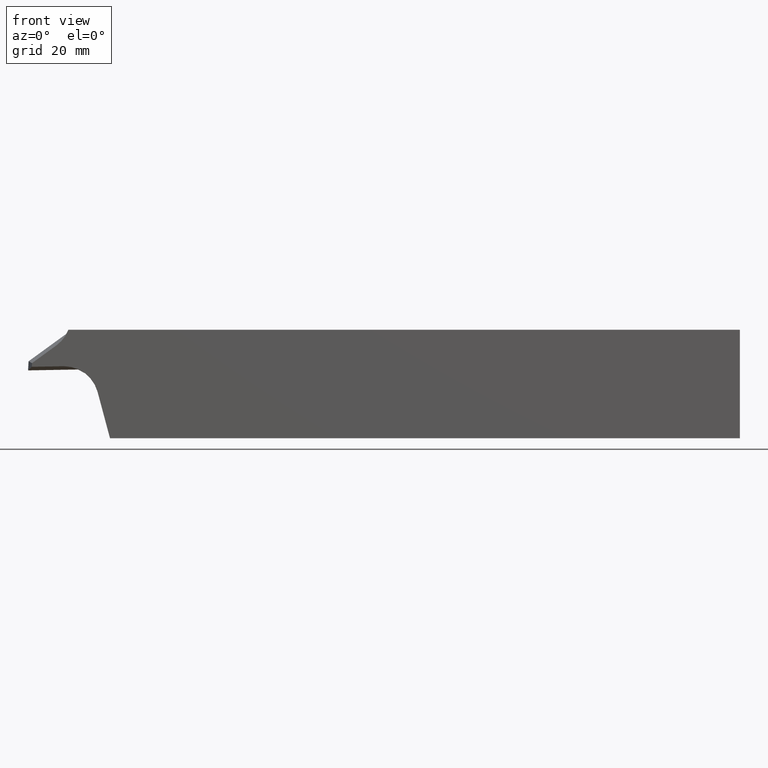
[diagram: clean part render]
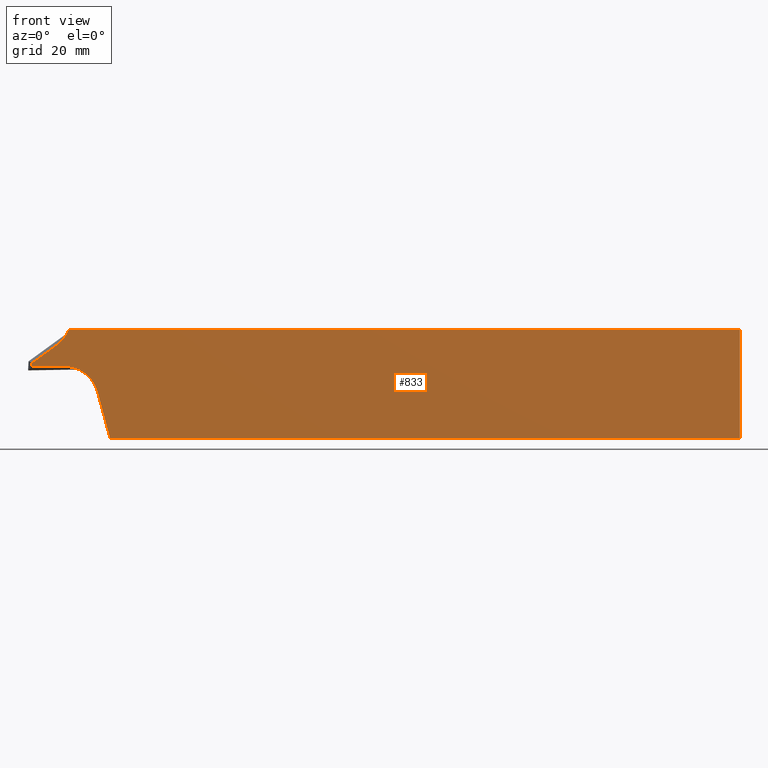
[diagram: same view with one face highlighted and labeled with its STEP entity id]
A machine part, front view. The second image highlights one B-rep face of the part: STEP entity #833.
In plain terms, the highlighted planar face has unit normal (0, 1, -0).
Its self-contained STEP definition (entity closure, byte-faithful):
#2 = DIRECTION ( 'NONE',  ( -2.482138512326289500E-030, -1.000000000000000000, 0.0000000000000000000 ) ) ;
#5 = LINE ( 'NONE', #328, #1473 ) ;
#30 = ORIENTED_EDGE ( 'NONE', *, *, #1051, .T. ) ;
#116 = EDGE_LOOP ( 'NONE', ( #30, #894, #1287, #1298, #1509, #1528, #675, #794, #1055, #356 ) ) ;
#131 = DIRECTION ( 'NONE',  ( -1.000000000000000000, -2.482138512326286400E-030, 1.110223024625109200E-016 ) ) ;
#139 = DIRECTION ( 'NONE',  ( 2.482138512326289500E-030, 1.000000000000000000, -5.511454653387083600E-046 ) ) ;
#161 = CARTESIAN_POINT ( 'NONE',  ( -2.081668171172168500E-014, -19.04999999999997900, -38.09999999999995900 ) ) ;
#209 = CARTESIAN_POINT ( 'NONE',  ( -110.6144449865125900, -19.04999999999997900, -38.09999999999994500 ) ) ;
#215 = CARTESIAN_POINT ( 'NONE',  ( -118.6837122982711600, -19.04999999999999000, -31.55367457411552200 ) ) ;
#228 = AXIS2_PLACEMENT_3D ( 'NONE', #215, #632, #386 ) ;
#248 = PLANE ( 'NONE',  #563 ) ;
#270 = LINE ( 'NONE', #658, #390 ) ;
#275 = CARTESIAN_POINT ( 'NONE',  ( -124.3126031752604600, -19.04999999999997900, -24.91331827457312200 ) ) ;
#287 = EDGE_CURVE ( 'NONE', #877, #989, #352, .T. ) ;
#290 = EDGE_CURVE ( 'NONE', #989, #1249, #659, .T. ) ;
#312 = VERTEX_POINT ( 'NONE', #1133 ) ;
#328 = CARTESIAN_POINT ( 'NONE',  ( -124.6612962398215200, -19.04999999999997900, -31.56677830152227700 ) ) ;
#338 = EDGE_CURVE ( 'NONE', #1156, #312, #834, .T. ) ;
#352 = LINE ( 'NONE', #161, #1630 ) ;
#356 = ORIENTED_EDGE ( 'NONE', *, *, #595, .F. ) ;
#365 = CARTESIAN_POINT ( 'NONE',  ( -2.081668171172168500E-014, -19.04999999999997900, -38.09999999999995900 ) ) ;
#386 = DIRECTION ( 'NONE',  ( 0.0000000000000000000, 0.0000000000000000000, -1.000000000000000000 ) ) ;
#390 = VECTOR ( 'NONE', #494, 1000.000000000000100 ) ;
#465 = LINE ( 'NONE', #1122, #1585 ) ;
#466 = EDGE_CURVE ( 'NONE', #1080, #1249, #467, .T. ) ;
#467 = CIRCLE ( 'NONE', #1593, 6.099999999999987200 ) ;
#486 = CARTESIAN_POINT ( 'NONE',  ( -123.5994385181671800, -19.04999999999999000, -16.85515915897577700 ) ) ;
#494 = DIRECTION ( 'NONE',  ( 0.8090169943749472300, 2.366582715663036100E-030, 0.5877852522924733600 ) ) ;
#521 = FACE_OUTER_BOUND ( 'NONE', #116, .T. ) ;
#563 = AXIS2_PLACEMENT_3D ( 'NONE', #1207, #139, #983 ) ;
#578 = VERTEX_POINT ( 'NONE', #275 ) ;
#595 = EDGE_CURVE ( 'NONE', #1486, #1334, #465, .T. ) ;
#600 = DIRECTION ( 'NONE',  ( -2.482138512326289500E-030, -1.000000000000000000, 0.0000000000000000000 ) ) ;
#630 = DIRECTION ( 'NONE',  ( 0.05233595624297031300, -2.366582715663038200E-030, 0.9986295347545723900 ) ) ;
#632 = DIRECTION ( 'NONE',  ( -2.482138512326289500E-030, -1.000000000000000000, 0.0000000000000000000 ) ) ;
#634 = DIRECTION ( 'NONE',  ( 1.000000000000000000, 2.482138512326286400E-030, -9.957992501029142700E-017 ) ) ;
#657 = EDGE_CURVE ( 'NONE', #578, #1080, #270, .T. ) ;
#658 = CARTESIAN_POINT ( 'NONE',  ( -49.21958788119678700, -19.04999999999996900, 29.64495089272115200 ) ) ;
#659 = LINE ( 'NONE', #1201, #828 ) ;
#675 = ORIENTED_EDGE ( 'NONE', *, *, #338, .F. ) ;
#676 = CARTESIAN_POINT ( 'NONE',  ( -118.6837122982711600, -19.04999999999999000, -25.45367457411553900 ) ) ;
#702 = DIRECTION ( 'NONE',  ( 0.0000000000000000000, 0.0000000000000000000, -1.000000000000000000 ) ) ;
#737 = AXIS2_PLACEMENT_3D ( 'NONE', #1412, #600, #702 ) ;
#743 = CARTESIAN_POINT ( 'NONE',  ( -120.0139484791831400, -19.04999999999997900, -21.79016282466294600 ) ) ;
#794 = ORIENTED_EDGE ( 'NONE', *, *, #1184, .F. ) ;
#828 = VECTOR ( 'NONE', #131, 1000.000000000000000 ) ;
#833 = ADVANCED_FACE ( 'NONE', ( #521 ), #248, .F. ) ;
#834 = LINE ( 'NONE', #1424, #1285 ) ;
#864 = DIRECTION ( 'NONE',  ( 2.220446049250363900E-016, 0.0000000000000000000, 1.000000000000000000 ) ) ;
#877 = VERTEX_POINT ( 'NONE', #1634 ) ;
#894 = ORIENTED_EDGE ( 'NONE', *, *, #287, .T. ) ;
#929 = DIRECTION ( 'NONE',  ( -0.9998476951563911600, -2.477516280459739900E-030, -0.01745240643728329700 ) ) ;
#983 = DIRECTION ( 'NONE',  ( -2.220446049250363400E-016, 0.0000000000000000000, -1.000000000000000000 ) ) ;
#989 = VERTEX_POINT ( 'NONE', #1092 ) ;
#992 = DIRECTION ( 'NONE',  ( -0.2588190451025185700, 7.888609052210126800E-031, 0.9659258262890688700 ) ) ;
#1013 = EDGE_CURVE ( 'NONE', #1334, #1378, #1251, .T. ) ;
#1051 = EDGE_CURVE ( 'NONE', #1486, #877, #1071, .T. ) ;
#1055 = ORIENTED_EDGE ( 'NONE', *, *, #1013, .F. ) ;
#1071 = LINE ( 'NONE', #365, #1328 ) ;
#1080 = VERTEX_POINT ( 'NONE', #743 ) ;
#1092 = CARTESIAN_POINT ( 'NONE',  ( 0.0000000000000000000, -19.04999999999996900, -19.04999999999997900 ) ) ;
#1098 = DIRECTION ( 'NONE',  ( 0.0000000000000000000, 0.0000000000000000000, -1.000000000000000000 ) ) ;
#1122 = CARTESIAN_POINT ( 'NONE',  ( -103.2046821851745200, -19.04999999999997600, -65.75361124662781300 ) ) ;
#1133 = CARTESIAN_POINT ( 'NONE',  ( -124.3460531544840500, -19.04999999999996900, -25.55158190033857200 ) ) ;
#1154 = CIRCLE ( 'NONE', #228, 6.099999999999973900 ) ;
#1156 = VERTEX_POINT ( 'NONE', #1492 ) ;
#1184 = EDGE_CURVE ( 'NONE', #1378, #1156, #1154, .T. ) ;
#1201 = CARTESIAN_POINT ( 'NONE',  ( 0.0000000000000000000, -19.04999999999996900, -19.04999999999997900 ) ) ;
#1207 = CARTESIAN_POINT ( 'NONE',  ( -2.081668171172168500E-014, -19.04999999999997900, -38.09999999999995900 ) ) ;
#1249 = VERTEX_POINT ( 'NONE', #1408 ) ;
#1251 = CIRCLE ( 'NONE', #737, 6.099999999999973900 ) ;
#1285 = VECTOR ( 'NONE', #929, 1000.000000000000100 ) ;
#1287 = ORIENTED_EDGE ( 'NONE', *, *, #290, .T. ) ;
#1298 = ORIENTED_EDGE ( 'NONE', *, *, #466, .F. ) ;
#1328 = VECTOR ( 'NONE', #634, 1000.000000000000000 ) ;
#1334 = VERTEX_POINT ( 'NONE', #1527 ) ;
#1378 = VERTEX_POINT ( 'NONE', #676 ) ;
#1408 = CARTESIAN_POINT ( 'NONE',  ( -117.9079823176353300, -19.04999999999997900, -19.04999999999996500 ) ) ;
#1412 = CARTESIAN_POINT ( 'NONE',  ( -118.6837122982711600, -19.04999999999999000, -31.55367457411552200 ) ) ;
#1424 = CARTESIAN_POINT ( 'NONE',  ( -0.2568408659772911100, -19.04999999999997600, -23.38559664295134500 ) ) ;
#1430 = EDGE_CURVE ( 'NONE', #312, #578, #5, .T. ) ;
#1473 = VECTOR ( 'NONE', #630, 1000.000000000000200 ) ;
#1486 = VERTEX_POINT ( 'NONE', #209 ) ;
#1492 = CARTESIAN_POINT ( 'NONE',  ( -118.7901719775386300, -19.04999999999997600, -25.45460363366152700 ) ) ;
#1509 = ORIENTED_EDGE ( 'NONE', *, *, #657, .F. ) ;
#1527 = CARTESIAN_POINT ( 'NONE',  ( -112.7915647579078400, -19.04999999999999000, -29.97487839899015700 ) ) ;
#1528 = ORIENTED_EDGE ( 'NONE', *, *, #1430, .F. ) ;
#1585 = VECTOR ( 'NONE', #992, 1000.000000000000200 ) ;
#1593 = AXIS2_PLACEMENT_3D ( 'NONE', #486, #2, #1098 ) ;
#1630 = VECTOR ( 'NONE', #864, 1000.000000000000000 ) ;
#1634 = CARTESIAN_POINT ( 'NONE',  ( -2.081668171172168500E-014, -19.04999999999997900, -38.09999999999995900 ) ) ;